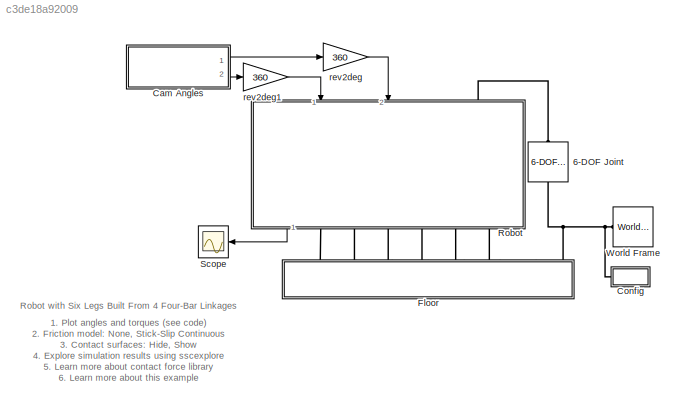
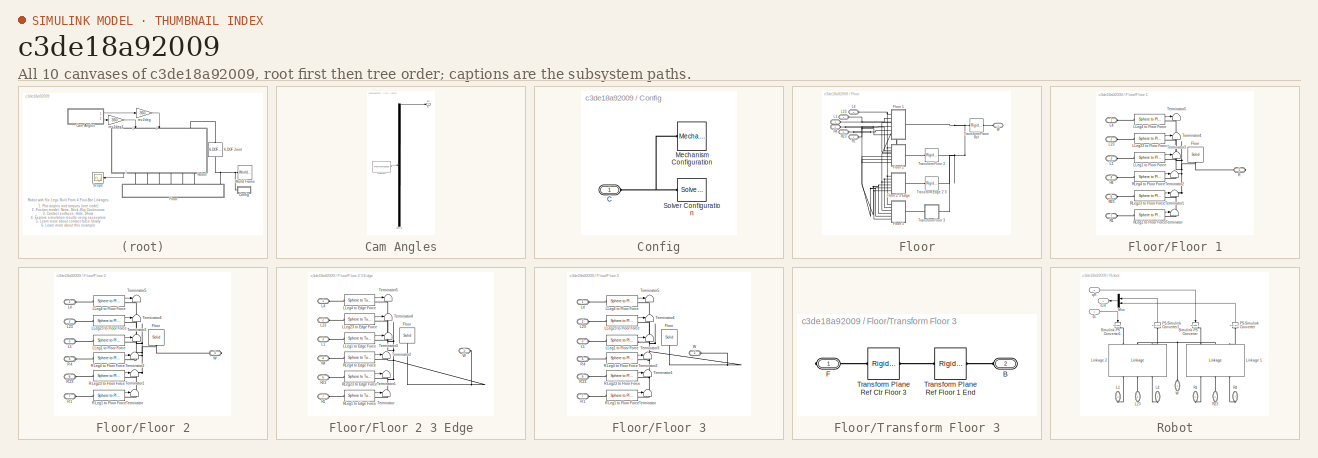
[diagram: thumbnail index - all 10 canvases of the model, root first then tree order]
MODEL slx_c3de18a92009
KIND model
CONFIG AbsTol = 1e-4
CONFIG EnableMultiTasking = on
CONFIG FixedStep = auto
CONFIG MaxStep = 1e-1
CONFIG MinStep = auto
CONFIG PostLoadFcn = sm_robot_6legs_4bar_param
CONFIG RelTol = 1e-3
CONFIG SampleTimeConstraint = Unconstrained
CONFIG Solver = ode15s
CONFIG SolverName = ode15s
CONFIG StartTime = 0.0
CONFIG StopTime = 33
BLOCK [Reference] 6-DOF Joint  REF=sm_lib/Joints/6-DOF Joint
  Ports = [0, 0, 0, 0, 0, 1, 1]
  SourceBlock = sm_lib/Joints/6-DOF Joint
  SourceProductBaseCode = MS
  SourceProductName = Simscape Multibody
  SourceType = 6-DOF Joint
BLOCK [SubSystem] Cam Angles
  ClipboardFcn = sigbuilder_block('clipboard');
  CloseFcn = sigbuilder_block('close');
  ContinueFcn = sigbuilder_block('continue');
  CopyFcn = sigbuilder_block('copy');
  DeleteFcn = sigbuilder_block('delete');
  LoadFcn = sigbuilder_block('load');
  MaskHideContents = on
  ModelCloseFcn = sigbuilder_block('modelClose');
  NameChangeFcn = sigbuilder_block('namechange');
  OpenFcn = sigbuilder_block('open',[355.8 216 550.8 400.2 ]);
  PauseFcn = sigbuilder_block('pause');
  Ports = [0, 2]
  PreSaveFcn = sigbuilder_block('preSave');
  RequestExecContextInheritance = off
  StartFcn = sigbuilder_block('start');
  StopFcn = sigbuilder_block('stop');
  Tag = STV Subsys
BLOCK [Demux] Cam Angles/Demux
  Outputs = 2
  Ports = [1, 2]
  Tag = STV Demux
BLOCK [FromWorkspace] Cam Angles/FromWs
  SampleTime = 0
  Tag = STV FromWs
  VariableName = tuvar
  ZeroCross = on
BLOCK [Outport] Cam Angles/qL
  IconDisplay = Port number
  Tag = STV Outport
BLOCK [Outport] Cam Angles/qR
  IconDisplay = Port number
  Port = 2
  Tag = STV Outport
BLOCK [SubSystem] Config
  Ports = [0, 0, 0, 0, 0, 1]
  RequestExecContextInheritance = off
BLOCK [PMIOPort] Config/C
  Side = Left
BLOCK [Reference] Config/Mechanism Configuration  REF=sm_lib/Utilities/Mechanism
Configuration
  Ports = [0, 0, 0, 0, 0, 0, 1]
  SourceBlock = sm_lib/Utilities/Mechanism\nConfiguration
  SourceProductBaseCode = MS
  SourceProductName = Simscape Multibody
  SourceType = Mechanism\nConfiguration
BLOCK [Reference] Config/Solver Configuration  REF=nesl_utility/Solver
Configuration
  Ports = [0, 0, 0, 0, 0, 0, 1]
  SourceBlock = nesl_utility/Solver\nConfiguration
  SourceProductBaseCode = SS
  SourceProductName = Simscape
  SourceType = Solver\nConfiguration
BLOCK [SubSystem] Floor
  Ports = [0, 0, 0, 0, 0, 7]
  RequestExecContextInheritance = off
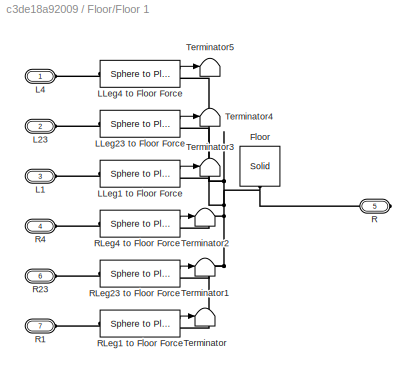
BLOCK [SubSystem] Floor/Floor 1
  Ports = [0, 0, 0, 0, 0, 6, 1]
  RequestExecContextInheritance = off
  Tag = PublishSubsystem
BLOCK [Reference] Floor/Floor 1/Floor  REF=sm_lib/Body Elements/Solid
  Ports = [0, 0, 0, 0, 0, 0, 1]
  SourceBlock = sm_lib/Body Elements/Solid
  SourceProductBaseCode = MS
  SourceProductName = Simscape Multibody
  SourceType = Solid
BLOCK [PMIOPort] Floor/Floor 1/L1
  Port = 3
  Side = Left
BLOCK [PMIOPort] Floor/Floor 1/L23
  Port = 2
  Side = Left
BLOCK [PMIOPort] Floor/Floor 1/L4
  Side = Left
BLOCK [Reference] Floor/Floor 1/LLeg1 to Floor Force  REF=Contact_Forces_Lib/3D/Sphere to Plane Force
  Ports = [0, 1, 0, 0, 0, 1, 1]
  SourceBlock = Contact_Forces_Lib/3D/Sphere to Plane Force
  SourceProductName = Simscape Multibody Contact Forces Library
  SourceType = Sphere to Plane Force
BLOCK [Reference] Floor/Floor 1/LLeg23 to Floor Force  REF=Contact_Forces_Lib/3D/Sphere to Plane Force
  Ports = [0, 1, 0, 0, 0, 1, 1]
  SourceBlock = Contact_Forces_Lib/3D/Sphere to Plane Force
  SourceProductName = Simscape Multibody Contact Forces Library
  SourceType = Sphere to Plane Force
BLOCK [Reference] Floor/Floor 1/LLeg4 to Floor Force  REF=Contact_Forces_Lib/3D/Sphere to Plane Force
  Ports = [0, 1, 0, 0, 0, 1, 1]
  SourceBlock = Contact_Forces_Lib/3D/Sphere to Plane Force
  SourceProductName = Simscape Multibody Contact Forces Library
  SourceType = Sphere to Plane Force
BLOCK [PMIOPort] Floor/Floor 1/R
  Port = 5
  Side = Right
BLOCK [PMIOPort] Floor/Floor 1/R1
  Port = 7
  Side = Left
BLOCK [PMIOPort] Floor/Floor 1/R23
  Port = 6
  Side = Left
BLOCK [PMIOPort] Floor/Floor 1/R4
  Port = 4
  Side = Left
BLOCK [Reference] Floor/Floor 1/RLeg1 to Floor Force  REF=Contact_Forces_Lib/3D/Sphere to Plane Force
  Ports = [0, 1, 0, 0, 0, 1, 1]
  SourceBlock = Contact_Forces_Lib/3D/Sphere to Plane Force
  SourceProductName = Simscape Multibody Contact Forces Library
  SourceType = Sphere to Plane Force
BLOCK [Reference] Floor/Floor 1/RLeg23 to Floor Force  REF=Contact_Forces_Lib/3D/Sphere to Plane Force
  Ports = [0, 1, 0, 0, 0, 1, 1]
  SourceBlock = Contact_Forces_Lib/3D/Sphere to Plane Force
  SourceProductName = Simscape Multibody Contact Forces Library
  SourceType = Sphere to Plane Force
BLOCK [Reference] Floor/Floor 1/RLeg4 to Floor Force  REF=Contact_Forces_Lib/3D/Sphere to Plane Force
  Ports = [0, 1, 0, 0, 0, 1, 1]
  SourceBlock = Contact_Forces_Lib/3D/Sphere to Plane Force
  SourceProductName = Simscape Multibody Contact Forces Library
  SourceType = Sphere to Plane Force
BLOCK [Terminator] Floor/Floor 1/Terminator
BLOCK [Terminator] Floor/Floor 1/Terminator1
BLOCK [Terminator] Floor/Floor 1/Terminator2
BLOCK [Terminator] Floor/Floor 1/Terminator3
BLOCK [Terminator] Floor/Floor 1/Terminator4
BLOCK [Terminator] Floor/Floor 1/Terminator5
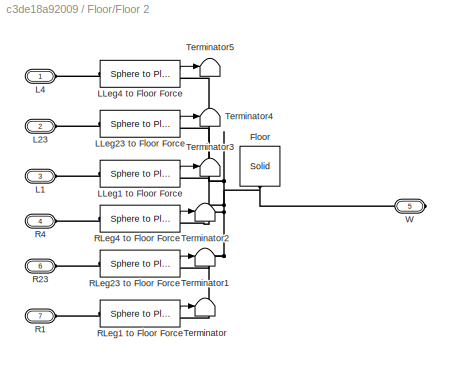
BLOCK [SubSystem] Floor/Floor 2
  Ports = [0, 0, 0, 0, 0, 6, 1]
  RequestExecContextInheritance = off
BLOCK [SubSystem] Floor/Floor 2 3 Edge
  Ports = [0, 0, 0, 0, 0, 6, 1]
  RequestExecContextInheritance = off
BLOCK [Reference] Floor/Floor 2 3 Edge/Floor  REF=sm_lib/Body Elements/Solid
  Ports = [0, 0, 0, 0, 0, 0, 1]
  SourceBlock = sm_lib/Body Elements/Solid
  SourceProductBaseCode = MS
  SourceProductName = Simscape Multibody
  SourceType = Solid
BLOCK [PMIOPort] Floor/Floor 2 3 Edge/L1
  Port = 3
  Side = Left
BLOCK [PMIOPort] Floor/Floor 2 3 Edge/L23
  Port = 2
  Side = Left
BLOCK [PMIOPort] Floor/Floor 2 3 Edge/L4
  Side = Left
BLOCK [Reference] Floor/Floor 2 3 Edge/LLeg1 to Edge Force  REF=Contact_Forces_Lib/3D/Sphere to Tube Force
  Ports = [0, 1, 0, 0, 0, 1, 1]
  SourceBlock = Contact_Forces_Lib/3D/Sphere to Tube Force
  SourceProductName = Simscape Multibody Contact Forces Library
  SourceType = Sphere to Tube Force
BLOCK [Reference] Floor/Floor 2 3 Edge/LLeg23 to Edge Force  REF=Contact_Forces_Lib/3D/Sphere to Tube Force
  Ports = [0, 1, 0, 0, 0, 1, 1]
  SourceBlock = Contact_Forces_Lib/3D/Sphere to Tube Force
  SourceProductName = Simscape Multibody Contact Forces Library
  SourceType = Sphere to Tube Force
BLOCK [Reference] Floor/Floor 2 3 Edge/LLeg4 to Edge Force  REF=Contact_Forces_Lib/3D/Sphere to Tube Force
  Ports = [0, 1, 0, 0, 0, 1, 1]
  SourceBlock = Contact_Forces_Lib/3D/Sphere to Tube Force
  SourceProductName = Simscape Multibody Contact Forces Library
  SourceType = Sphere to Tube Force
BLOCK [PMIOPort] Floor/Floor 2 3 Edge/R1
  Port = 7
  Side = Left
BLOCK [PMIOPort] Floor/Floor 2 3 Edge/R23
  Port = 6
  Side = Left
BLOCK [PMIOPort] Floor/Floor 2 3 Edge/R4
  Port = 4
  Side = Left
BLOCK [Reference] Floor/Floor 2 3 Edge/RLeg1 to Edge Force  REF=Contact_Forces_Lib/3D/Sphere to Tube Force
  Ports = [0, 1, 0, 0, 0, 1, 1]
  SourceBlock = Contact_Forces_Lib/3D/Sphere to Tube Force
  SourceProductName = Simscape Multibody Contact Forces Library
  SourceType = Sphere to Tube Force
BLOCK [Reference] Floor/Floor 2 3 Edge/RLeg23 to Edge Force  REF=Contact_Forces_Lib/3D/Sphere to Tube Force
  Ports = [0, 1, 0, 0, 0, 1, 1]
  SourceBlock = Contact_Forces_Lib/3D/Sphere to Tube Force
  SourceProductName = Simscape Multibody Contact Forces Library
  SourceType = Sphere to Tube Force
BLOCK [Reference] Floor/Floor 2 3 Edge/RLeg4 to Edge Force  REF=Contact_Forces_Lib/3D/Sphere to Tube Force
  Ports = [0, 1, 0, 0, 0, 1, 1]
  SourceBlock = Contact_Forces_Lib/3D/Sphere to Tube Force
  SourceProductName = Simscape Multibody Contact Forces Library
  SourceType = Sphere to Tube Force
BLOCK [Terminator] Floor/Floor 2 3 Edge/Terminator
BLOCK [Terminator] Floor/Floor 2 3 Edge/Terminator1
BLOCK [Terminator] Floor/Floor 2 3 Edge/Terminator2
BLOCK [Terminator] Floor/Floor 2 3 Edge/Terminator3
BLOCK [Terminator] Floor/Floor 2 3 Edge/Terminator4
BLOCK [Terminator] Floor/Floor 2 3 Edge/Terminator5
BLOCK [PMIOPort] Floor/Floor 2 3 Edge/W
  Port = 5
  Side = Right
BLOCK [Reference] Floor/Floor 2/Floor  REF=sm_lib/Body Elements/Solid
  Ports = [0, 0, 0, 0, 0, 0, 1]
  SourceBlock = sm_lib/Body Elements/Solid
  SourceProductBaseCode = MS
  SourceProductName = Simscape Multibody
  SourceType = Solid
BLOCK [PMIOPort] Floor/Floor 2/L1
  Port = 3
  Side = Left
BLOCK [PMIOPort] Floor/Floor 2/L23
  Port = 2
  Side = Left
BLOCK [PMIOPort] Floor/Floor 2/L4
  Side = Left
BLOCK [Reference] Floor/Floor 2/LLeg1 to Floor Force  REF=Contact_Forces_Lib/3D/Sphere to Plane Force
  Ports = [0, 1, 0, 0, 0, 1, 1]
  SourceBlock = Contact_Forces_Lib/3D/Sphere to Plane Force
  SourceProductName = Simscape Multibody Contact Forces Library
  SourceType = Sphere to Plane Force
BLOCK [Reference] Floor/Floor 2/LLeg23 to Floor Force  REF=Contact_Forces_Lib/3D/Sphere to Plane Force
  Ports = [0, 1, 0, 0, 0, 1, 1]
  SourceBlock = Contact_Forces_Lib/3D/Sphere to Plane Force
  SourceProductName = Simscape Multibody Contact Forces Library
  SourceType = Sphere to Plane Force
BLOCK [Reference] Floor/Floor 2/LLeg4 to Floor Force  REF=Contact_Forces_Lib/3D/Sphere to Plane Force
  Ports = [0, 1, 0, 0, 0, 1, 1]
  SourceBlock = Contact_Forces_Lib/3D/Sphere to Plane Force
  SourceProductName = Simscape Multibody Contact Forces Library
  SourceType = Sphere to Plane Force
BLOCK [PMIOPort] Floor/Floor 2/R1
  Port = 7
  Side = Left
BLOCK [PMIOPort] Floor/Floor 2/R23
  Port = 6
  Side = Left
BLOCK [PMIOPort] Floor/Floor 2/R4
  Port = 4
  Side = Left
BLOCK [Reference] Floor/Floor 2/RLeg1 to Floor Force  REF=Contact_Forces_Lib/3D/Sphere to Plane Force
  Ports = [0, 1, 0, 0, 0, 1, 1]
  SourceBlock = Contact_Forces_Lib/3D/Sphere to Plane Force
  SourceProductName = Simscape Multibody Contact Forces Library
  SourceType = Sphere to Plane Force
BLOCK [Reference] Floor/Floor 2/RLeg23 to Floor Force  REF=Contact_Forces_Lib/3D/Sphere to Plane Force
  Ports = [0, 1, 0, 0, 0, 1, 1]
  SourceBlock = Contact_Forces_Lib/3D/Sphere to Plane Force
  SourceProductName = Simscape Multibody Contact Forces Library
  SourceType = Sphere to Plane Force
BLOCK [Reference] Floor/Floor 2/RLeg4 to Floor Force  REF=Contact_Forces_Lib/3D/Sphere to Plane Force
  Ports = [0, 1, 0, 0, 0, 1, 1]
  SourceBlock = Contact_Forces_Lib/3D/Sphere to Plane Force
  SourceProductName = Simscape Multibody Contact Forces Library
  SourceType = Sphere to Plane Force
BLOCK [Terminator] Floor/Floor 2/Terminator
BLOCK [Terminator] Floor/Floor 2/Terminator1
BLOCK [Terminator] Floor/Floor 2/Terminator2
BLOCK [Terminator] Floor/Floor 2/Terminator3
BLOCK [Terminator] Floor/Floor 2/Terminator4
BLOCK [Terminator] Floor/Floor 2/Terminator5
BLOCK [PMIOPort] Floor/Floor 2/W
  Port = 5
  Side = Right
BLOCK [SubSystem] Floor/Floor 3
  Ports = [0, 0, 0, 0, 0, 6, 1]
  RequestExecContextInheritance = off
BLOCK [Reference] Floor/Floor 3/Floor  REF=sm_lib/Body Elements/Solid
  Ports = [0, 0, 0, 0, 0, 0, 1]
  SourceBlock = sm_lib/Body Elements/Solid
  SourceProductBaseCode = MS
  SourceProductName = Simscape Multibody
  SourceType = Solid
BLOCK [PMIOPort] Floor/Floor 3/L1
  Port = 3
  Side = Left
BLOCK [PMIOPort] Floor/Floor 3/L23
  Port = 2
  Side = Left
BLOCK [PMIOPort] Floor/Floor 3/L4
  Side = Left
BLOCK [Reference] Floor/Floor 3/LLeg1 to Floor Force  REF=Contact_Forces_Lib/3D/Sphere to Plane Force
  Ports = [0, 1, 0, 0, 0, 1, 1]
  SourceBlock = Contact_Forces_Lib/3D/Sphere to Plane Force
  SourceProductName = Simscape Multibody Contact Forces Library
  SourceType = Sphere to Plane Force
BLOCK [Reference] Floor/Floor 3/LLeg23 to Floor Force  REF=Contact_Forces_Lib/3D/Sphere to Plane Force
  Ports = [0, 1, 0, 0, 0, 1, 1]
  SourceBlock = Contact_Forces_Lib/3D/Sphere to Plane Force
  SourceProductName = Simscape Multibody Contact Forces Library
  SourceType = Sphere to Plane Force
BLOCK [Reference] Floor/Floor 3/LLeg4 to Floor Force  REF=Contact_Forces_Lib/3D/Sphere to Plane Force
  Ports = [0, 1, 0, 0, 0, 1, 1]
  SourceBlock = Contact_Forces_Lib/3D/Sphere to Plane Force
  SourceProductName = Simscape Multibody Contact Forces Library
  SourceType = Sphere to Plane Force
BLOCK [PMIOPort] Floor/Floor 3/R1
  Port = 7
  Side = Left
BLOCK [PMIOPort] Floor/Floor 3/R23
  Port = 6
  Side = Left
BLOCK [PMIOPort] Floor/Floor 3/R4
  Port = 4
  Side = Left
BLOCK [Reference] Floor/Floor 3/RLeg1 to Floor Force  REF=Contact_Forces_Lib/3D/Sphere to Plane Force
  Ports = [0, 1, 0, 0, 0, 1, 1]
  SourceBlock = Contact_Forces_Lib/3D/Sphere to Plane Force
  SourceProductName = Simscape Multibody Contact Forces Library
  SourceType = Sphere to Plane Force
BLOCK [Reference] Floor/Floor 3/RLeg23 to Floor Force  REF=Contact_Forces_Lib/3D/Sphere to Plane Force
  Ports = [0, 1, 0, 0, 0, 1, 1]
  SourceBlock = Contact_Forces_Lib/3D/Sphere to Plane Force
  SourceProductName = Simscape Multibody Contact Forces Library
  SourceType = Sphere to Plane Force
BLOCK [Reference] Floor/Floor 3/RLeg4 to Floor Force  REF=Contact_Forces_Lib/3D/Sphere to Plane Force
  Ports = [0, 1, 0, 0, 0, 1, 1]
  SourceBlock = Contact_Forces_Lib/3D/Sphere to Plane Force
  SourceProductName = Simscape Multibody Contact Forces Library
  SourceType = Sphere to Plane Force
BLOCK [Terminator] Floor/Floor 3/Terminator
BLOCK [Terminator] Floor/Floor 3/Terminator1
BLOCK [Terminator] Floor/Floor 3/Terminator2
BLOCK [Terminator] Floor/Floor 3/Terminator3
BLOCK [Terminator] Floor/Floor 3/Terminator4
BLOCK [Terminator] Floor/Floor 3/Terminator5
BLOCK [PMIOPort] Floor/Floor 3/W
  Port = 5
  Side = Right
BLOCK [PMIOPort] Floor/L1
  Side = Left
BLOCK [PMIOPort] Floor/L23
  Port = 2
  Side = Left
BLOCK [PMIOPort] Floor/L4
  Port = 3
  Side = Left
BLOCK [PMIOPort] Floor/R1
  Port = 4
  Side = Left
BLOCK [PMIOPort] Floor/R23
  Port = 5
  Side = Left
BLOCK [PMIOPort] Floor/R4
  Port = 6
  Side = Left
BLOCK [Reference] Floor/Transform Edge 2 3  REF=sm_lib/Frames and
Transforms/Rigid
Transform
  Ports = [0, 0, 0, 0, 0, 1, 1]
  SourceBlock = sm_lib/Frames and\nTransforms/Rigid\nTransform
  SourceProductBaseCode = MS
  SourceProductName = Simscape Multibody
  SourceType = Rigid\nTransform
BLOCK [Reference] Floor/Transform Floor 2  REF=sm_lib/Frames and
Transforms/Rigid
Transform
  Ports = [0, 0, 0, 0, 0, 1, 1]
  SourceBlock = sm_lib/Frames and\nTransforms/Rigid\nTransform
  SourceProductBaseCode = MS
  SourceProductName = Simscape Multibody
  SourceType = Rigid\nTransform
BLOCK [SubSystem] Floor/Transform Floor 3
  Ports = [0, 0, 0, 0, 0, 1, 1]
  RequestExecContextInheritance = off
BLOCK [PMIOPort] Floor/Transform Floor 3/B
  Port = 2
  Side = Left
BLOCK [PMIOPort] Floor/Transform Floor 3/F
  Side = Right
BLOCK [Reference] Floor/Transform Floor 3/Transform Plane Ref Ctr Floor 3  REF=sm_lib/Frames and
Transforms/Rigid
Transform
  Ports = [0, 0, 0, 0, 0, 1, 1]
  SourceBlock = sm_lib/Frames and\nTransforms/Rigid\nTransform
  SourceProductBaseCode = MS
  SourceProductName = Simscape Multibody
  SourceType = Rigid\nTransform
BLOCK [Reference] Floor/Transform Floor 3/Transform Plane Ref Floor 1 End  REF=sm_lib/Frames and
Transforms/Rigid
Transform
  Ports = [0, 0, 0, 0, 0, 1, 1]
  SourceBlock = sm_lib/Frames and\nTransforms/Rigid\nTransform
  SourceProductBaseCode = MS
  SourceProductName = Simscape Multibody
  SourceType = Rigid\nTransform
BLOCK [Reference] Floor/Transform Plane Ref  REF=sm_lib/Frames and
Transforms/Rigid
Transform
  Ports = [0, 0, 0, 0, 0, 1, 1]
  SourceBlock = sm_lib/Frames and\nTransforms/Rigid\nTransform
  SourceProductBaseCode = MS
  SourceProductName = Simscape Multibody
  SourceType = Rigid\nTransform
BLOCK [PMIOPort] Floor/W
  Port = 7
  Side = Left
BLOCK [SubSystem] Robot
  Ports = [2, 1, 0, 0, 0, 1, 6]
  RequestExecContextInheritance = off
  Tag = PublishSubsystem
BLOCK [PMIOPort] Robot/L1
  Port = 2
  Side = Right
BLOCK [PMIOPort] Robot/L23
  Port = 3
  Side = Right
BLOCK [PMIOPort] Robot/L4
  Port = 4
  Side = Right
BLOCK [Reference] Robot/Linkage 1  REF=sm_robot_6legs_4bar_lib/Linkage
  AttributesFormatString = %<popup_LorR>
  Ports = [0, 0, 0, 0, 0, 3, 3]
  SourceBlock = sm_robot_6legs_4bar_lib/Linkage
  SourceType = Leg Mechanism and Frame
BLOCK [Reference] Robot/Linkage 2  REF=sm_robot_6legs_4bar_lib/Linkage
  AttributesFormatString = %<popup_LorR>
  Ports = [0, 0, 0, 0, 0, 3, 3]
  SourceBlock = sm_robot_6legs_4bar_lib/Linkage
  SourceType = Leg Mechanism and Frame
  Tag = PublishSubsystem
BLOCK [Mux] Robot/Mux
  DisplayOption = bar
  Inputs = 2
  Ports = [2, 1]
BLOCK [Reference] Robot/PS-Simulink Converter  REF=nesl_utility/PS-Simulink
Converter
  Ports = [0, 1, 0, 0, 0, 1]
  SourceBlock = nesl_utility/PS-Simulink\nConverter
  SourceProductBaseCode = SS
  SourceProductName = Simscape
  SourceType = PS-Simulink\nConverter
BLOCK [Reference] Robot/PS-Simulink Converter1  REF=nesl_utility/PS-Simulink
Converter
  Ports = [0, 1, 0, 0, 0, 1]
  SourceBlock = nesl_utility/PS-Simulink\nConverter
  SourceProductBaseCode = SS
  SourceProductName = Simscape
  SourceType = PS-Simulink\nConverter
BLOCK [PMIOPort] Robot/R1
  Port = 5
  Side = Right
BLOCK [PMIOPort] Robot/R23
  Port = 6
  Side = Right
BLOCK [PMIOPort] Robot/R4
  Port = 7
  Side = Right
BLOCK [Reference] Robot/Simulink-PS Converter  REF=nesl_utility/Simulink-PS
Converter
  Ports = [1, 0, 0, 0, 0, 0, 1]
  SourceBlock = nesl_utility/Simulink-PS\nConverter
  SourceProductBaseCode = SS
  SourceProductName = Simscape
  SourceType = Simulink-PS\nConverter
BLOCK [Reference] Robot/Simulink-PS Converter1  REF=nesl_utility/Simulink-PS
Converter
  Ports = [1, 0, 0, 0, 0, 0, 1]
  SourceBlock = nesl_utility/Simulink-PS\nConverter
  SourceProductBaseCode = SS
  SourceProductName = Simscape
  SourceType = Simulink-PS\nConverter
BLOCK [PMIOPort] Robot/W
  Side = Left
BLOCK [Inport] Robot/qL
  IconDisplay = Port number
  Port = 2
BLOCK [Inport] Robot/qR
  IconDisplay = Port number
BLOCK [Outport] Robot/tLR
  IconDisplay = Port number
BLOCK [Scope] Scope
  Floating = off
  NumInputPorts = 1
  Ports = [1]
  ScopeSpecificationString = Simulink.scopes.TimeScopeBlockCfg('CurrentConfiguration', extmgr.ConfigurationSet(extmgr.Configuration('Core','General UI',true),extmgr.Configuration('Core','Source UI',true),extmgr.Configuration('Sources','WiredSimulink',true),extmgr.Configuration('Visuals','Time Domain',true,'SerializedDisplays',{struct('MinYLimReal','-0.58589','MaxYLimReal','0.586','YLabelReal','','MinYLimMag','0.00000','MaxYLi...<+1404ch>
BLOCK [Reference] World Frame  REF=sm_lib/Frames and
Transforms/World Frame
  Ports = [0, 0, 0, 0, 0, 0, 1]
  SourceBlock = sm_lib/Frames and\nTransforms/World Frame
  SourceProductBaseCode = MS
  SourceProductName = Simscape Multibody
  SourceType = World Frame
BLOCK [Gain] rev2deg
  Gain = 360
  OutDataTypeStr = Inherit: Inherit via internal rule
  ParamDataTypeStr = Inherit: Inherit via internal rule
  SaturateOnIntegerOverflow = off
BLOCK [Gain] rev2deg1
  Gain = 360
  OutDataTypeStr = Inherit: Inherit via internal rule
  ParamDataTypeStr = Inherit: Inherit via internal rule
  SaturateOnIntegerOverflow = off
ANNOTATION (root): 1. Plot angles and torques ( see code ) 2. Friction model: None , Stick-Slip Continuous 3. Contact surfaces: Hide , Show 4. Explore simulation results using sscexplore 5. Learn more about contact force library 6. Learn more about this example
ANNOTATION (root): Robot with Six Legs Built From 4 Four-Bar Linkages
LINE Cam Angles:1 -> rev2deg:1
LINE Cam Angles:2 -> rev2deg1:1
LINE Floor/Floor 1/LLeg1 to Floor Force:1 -> Floor/Floor 1/Terminator3:1
LINE Floor/Floor 1/LLeg23 to Floor Force:1 -> Floor/Floor 1/Terminator4:1
LINE Floor/Floor 1/LLeg4 to Floor Force:1 -> Floor/Floor 1/Terminator5:1
LINE Floor/Floor 1/RLeg1 to Floor Force:1 -> Floor/Floor 1/Terminator:1
LINE Floor/Floor 1/RLeg23 to Floor Force:1 -> Floor/Floor 1/Terminator1:1
LINE Floor/Floor 1/RLeg4 to Floor Force:1 -> Floor/Floor 1/Terminator2:1
LINE Floor/Floor 2 3 Edge/LLeg1 to Edge Force:1 -> Floor/Floor 2 3 Edge/Terminator3:1
LINE Floor/Floor 2 3 Edge/LLeg23 to Edge Force:1 -> Floor/Floor 2 3 Edge/Terminator4:1
LINE Floor/Floor 2 3 Edge/LLeg4 to Edge Force:1 -> Floor/Floor 2 3 Edge/Terminator5:1
LINE Floor/Floor 2 3 Edge/RLeg1 to Edge Force:1 -> Floor/Floor 2 3 Edge/Terminator:1
LINE Floor/Floor 2 3 Edge/RLeg23 to Edge Force:1 -> Floor/Floor 2 3 Edge/Terminator1:1
LINE Floor/Floor 2 3 Edge/RLeg4 to Edge Force:1 -> Floor/Floor 2 3 Edge/Terminator2:1
LINE Floor/Floor 2/LLeg1 to Floor Force:1 -> Floor/Floor 2/Terminator3:1
LINE Floor/Floor 2/LLeg23 to Floor Force:1 -> Floor/Floor 2/Terminator4:1
LINE Floor/Floor 2/LLeg4 to Floor Force:1 -> Floor/Floor 2/Terminator5:1
LINE Floor/Floor 2/RLeg1 to Floor Force:1 -> Floor/Floor 2/Terminator:1
LINE Floor/Floor 2/RLeg23 to Floor Force:1 -> Floor/Floor 2/Terminator1:1
LINE Floor/Floor 2/RLeg4 to Floor Force:1 -> Floor/Floor 2/Terminator2:1
LINE Floor/Floor 3/LLeg1 to Floor Force:1 -> Floor/Floor 3/Terminator3:1
LINE Floor/Floor 3/LLeg23 to Floor Force:1 -> Floor/Floor 3/Terminator4:1
LINE Floor/Floor 3/LLeg4 to Floor Force:1 -> Floor/Floor 3/Terminator5:1
LINE Floor/Floor 3/RLeg1 to Floor Force:1 -> Floor/Floor 3/Terminator:1
LINE Floor/Floor 3/RLeg23 to Floor Force:1 -> Floor/Floor 3/Terminator1:1
LINE Floor/Floor 3/RLeg4 to Floor Force:1 -> Floor/Floor 3/Terminator2:1
LINE Robot/Mux:1 -> Robot/tLR:1
LINE Robot/PS-Simulink Converter1:1 -> Robot/Mux:1
LINE Robot/PS-Simulink Converter:1 -> Robot/Mux:2
LINE Robot/qL:1 -> Robot/Simulink-PS Converter1:1
LINE Robot/qR:1 -> Robot/Simulink-PS Converter:1
LINE Robot:1 -> Scope:1
LINE rev2deg1:1 -> Robot:1
LINE rev2deg:1 -> Robot:2
PNET net1: 6-DOF Joint:LConn1 -- Config:LConn1 -- Floor:LConn7 -- World Frame:RConn1
PLINE 6-DOF Joint:RConn1 -- Robot:LConn1
PNET net2: Config/C:RConn1 -- Config/Mechanism Configuration:RConn1 -- Config/Solver Configuration:RConn1
PNET net3: Floor/Floor 1/Floor:RConn1 -- Floor/Floor 1/LLeg1 to Floor Force:RConn1 -- Floor/Floor 1/LLeg23 to Floor Force:RConn1 -- Floor/Floor 1/LLeg4 to Floor Force:RConn1 -- Floor/Floor 1/R:RConn1 -- Floor/Floor 1/RLeg1 to Floor Force:RConn1 -- Floor/Floor 1/RLeg23 to Floor Force:RConn1 -- Floor/Floor 1/RLeg4 to Floor Force:RConn1
PLINE Floor/Floor 1/L1:RConn1 -- Floor/Floor 1/LLeg1 to Floor Force:LConn1
PLINE Floor/Floor 1/L23:RConn1 -- Floor/Floor 1/LLeg23 to Floor Force:LConn1
PLINE Floor/Floor 1/L4:RConn1 -- Floor/Floor 1/LLeg4 to Floor Force:LConn1
PLINE Floor/Floor 1/R1:RConn1 -- Floor/Floor 1/RLeg1 to Floor Force:LConn1
PLINE Floor/Floor 1/R23:RConn1 -- Floor/Floor 1/RLeg23 to Floor Force:LConn1
PLINE Floor/Floor 1/R4:RConn1 -- Floor/Floor 1/RLeg4 to Floor Force:LConn1
PNET net4: Floor/Floor 1:LConn1 -- Floor/Floor 2 3 Edge:LConn1 -- Floor/Floor 2:LConn1 -- Floor/Floor 3:LConn1 -- Floor/L4:RConn1
PNET net5: Floor/Floor 1:LConn2 -- Floor/Floor 2 3 Edge:LConn2 -- Floor/Floor 2:LConn2 -- Floor/Floor 3:LConn2 -- Floor/L23:RConn1
PNET net6: Floor/Floor 1:LConn3 -- Floor/Floor 2 3 Edge:LConn3 -- Floor/Floor 2:LConn3 -- Floor/Floor 3:LConn3 -- Floor/L1:RConn1
PNET net7: Floor/Floor 1:LConn4 -- Floor/Floor 2 3 Edge:LConn4 -- Floor/Floor 2:LConn4 -- Floor/Floor 3:LConn4 -- Floor/R4:RConn1
PNET net8: Floor/Floor 1:LConn5 -- Floor/Floor 2 3 Edge:LConn5 -- Floor/Floor 2:LConn5 -- Floor/Floor 3:LConn5 -- Floor/R23:RConn1
PNET net9: Floor/Floor 1:LConn6 -- Floor/Floor 2 3 Edge:LConn6 -- Floor/Floor 2:LConn6 -- Floor/Floor 3:LConn6 -- Floor/R1:RConn1
PNET net10: Floor/Floor 1:RConn1 -- Floor/Transform Edge 2 3:LConn1 -- Floor/Transform Floor 2:LConn1 -- Floor/Transform Floor 3:LConn1 -- Floor/Transform Plane Ref:RConn1
PNET net11: Floor/Floor 2 3 Edge/Floor:RConn1 -- Floor/Floor 2 3 Edge/LLeg1 to Edge Force:RConn1 -- Floor/Floor 2 3 Edge/LLeg23 to Edge Force:RConn1 -- Floor/Floor 2 3 Edge/LLeg4 to Edge Force:RConn1 -- Floor/Floor 2 3 Edge/RLeg1 to Edge Force:RConn1 -- Floor/Floor 2 3 Edge/RLeg23 to Edge Force:RConn1 -- Floor/Floor 2 3 Edge/RLeg4 to Edge Force:RConn1 -- Floor/Floor 2 3 Edge/W:RConn1
PLINE Floor/Floor 2 3 Edge/L1:RConn1 -- Floor/Floor 2 3 Edge/LLeg1 to Edge Force:LConn1
PLINE Floor/Floor 2 3 Edge/L23:RConn1 -- Floor/Floor 2 3 Edge/LLeg23 to Edge Force:LConn1
PLINE Floor/Floor 2 3 Edge/L4:RConn1 -- Floor/Floor 2 3 Edge/LLeg4 to Edge Force:LConn1
PLINE Floor/Floor 2 3 Edge/R1:RConn1 -- Floor/Floor 2 3 Edge/RLeg1 to Edge Force:LConn1
PLINE Floor/Floor 2 3 Edge/R23:RConn1 -- Floor/Floor 2 3 Edge/RLeg23 to Edge Force:LConn1
PLINE Floor/Floor 2 3 Edge/R4:RConn1 -- Floor/Floor 2 3 Edge/RLeg4 to Edge Force:LConn1
PLINE Floor/Floor 2 3 Edge:RConn1 -- Floor/Transform Edge 2 3:RConn1
PNET net12: Floor/Floor 2/Floor:RConn1 -- Floor/Floor 2/LLeg1 to Floor Force:RConn1 -- Floor/Floor 2/LLeg23 to Floor Force:RConn1 -- Floor/Floor 2/LLeg4 to Floor Force:RConn1 -- Floor/Floor 2/RLeg1 to Floor Force:RConn1 -- Floor/Floor 2/RLeg23 to Floor Force:RConn1 -- Floor/Floor 2/RLeg4 to Floor Force:RConn1 -- Floor/Floor 2/W:RConn1
PLINE Floor/Floor 2/L1:RConn1 -- Floor/Floor 2/LLeg1 to Floor Force:LConn1
PLINE Floor/Floor 2/L23:RConn1 -- Floor/Floor 2/LLeg23 to Floor Force:LConn1
PLINE Floor/Floor 2/L4:RConn1 -- Floor/Floor 2/LLeg4 to Floor Force:LConn1
PLINE Floor/Floor 2/R1:RConn1 -- Floor/Floor 2/RLeg1 to Floor Force:LConn1
PLINE Floor/Floor 2/R23:RConn1 -- Floor/Floor 2/RLeg23 to Floor Force:LConn1
PLINE Floor/Floor 2/R4:RConn1 -- Floor/Floor 2/RLeg4 to Floor Force:LConn1
PLINE Floor/Floor 2:RConn1 -- Floor/Transform Floor 2:RConn1
PNET net13: Floor/Floor 3/Floor:RConn1 -- Floor/Floor 3/LLeg1 to Floor Force:RConn1 -- Floor/Floor 3/LLeg23 to Floor Force:RConn1 -- Floor/Floor 3/LLeg4 to Floor Force:RConn1 -- Floor/Floor 3/RLeg1 to Floor Force:RConn1 -- Floor/Floor 3/RLeg23 to Floor Force:RConn1 -- Floor/Floor 3/RLeg4 to Floor Force:RConn1 -- Floor/Floor 3/W:RConn1
PLINE Floor/Floor 3/L1:RConn1 -- Floor/Floor 3/LLeg1 to Floor Force:LConn1
PLINE Floor/Floor 3/L23:RConn1 -- Floor/Floor 3/LLeg23 to Floor Force:LConn1
PLINE Floor/Floor 3/L4:RConn1 -- Floor/Floor 3/LLeg4 to Floor Force:LConn1
PLINE Floor/Floor 3/R1:RConn1 -- Floor/Floor 3/RLeg1 to Floor Force:LConn1
PLINE Floor/Floor 3/R23:RConn1 -- Floor/Floor 3/RLeg23 to Floor Force:LConn1
PLINE Floor/Floor 3/R4:RConn1 -- Floor/Floor 3/RLeg4 to Floor Force:LConn1
PLINE Floor/Floor 3:RConn1 -- Floor/Transform Floor 3:RConn1
PLINE Floor/Transform Floor 3/B:RConn1 -- Floor/Transform Floor 3/Transform Plane Ref Floor 1 End:LConn1
PLINE Floor/Transform Floor 3/F:RConn1 -- Floor/Transform Floor 3/Transform Plane Ref Ctr Floor 3:RConn1
PLINE Floor/Transform Floor 3/Transform Plane Ref Ctr Floor 3:LConn1 -- Floor/Transform Floor 3/Transform Plane Ref Floor 1 End:RConn1
PLINE Floor/Transform Plane Ref:LConn1 -- Floor/W:RConn1
PLINE Floor:LConn1 -- Robot:RConn1
PLINE Floor:LConn2 -- Robot:RConn2
PLINE Floor:LConn3 -- Robot:RConn3
PLINE Floor:LConn4 -- Robot:RConn4
PLINE Floor:LConn5 -- Robot:RConn5
PLINE Floor:LConn6 -- Robot:RConn6
PLINE Robot/L1:RConn1 -- Robot/Linkage 2:RConn1
PLINE Robot/L23:RConn1 -- Robot/Linkage 2:RConn2
PLINE Robot/L4:RConn1 -- Robot/Linkage 2:RConn3
PLINE Robot/Linkage 1:LConn1 -- Robot/Simulink-PS Converter:RConn1
PNET net14: Robot/Linkage 1:LConn2 -- Robot/Linkage 2:LConn2 -- Robot/W:RConn1
PLINE Robot/Linkage 1:LConn3 -- Robot/PS-Simulink Converter:LConn1
PLINE Robot/Linkage 1:RConn1 -- Robot/R1:RConn1
PLINE Robot/Linkage 1:RConn2 -- Robot/R23:RConn1
PLINE Robot/Linkage 1:RConn3 -- Robot/R4:RConn1
PLINE Robot/Linkage 2:LConn1 -- Robot/Simulink-PS Converter1:RConn1
PLINE Robot/Linkage 2:LConn3 -- Robot/PS-Simulink Converter1:LConn1
note: PNET lines group multi-terminal physical nets as a canonical sorted terminal list (undirected conserving connections); 2-terminal nets keep the pairwise PLINE form
